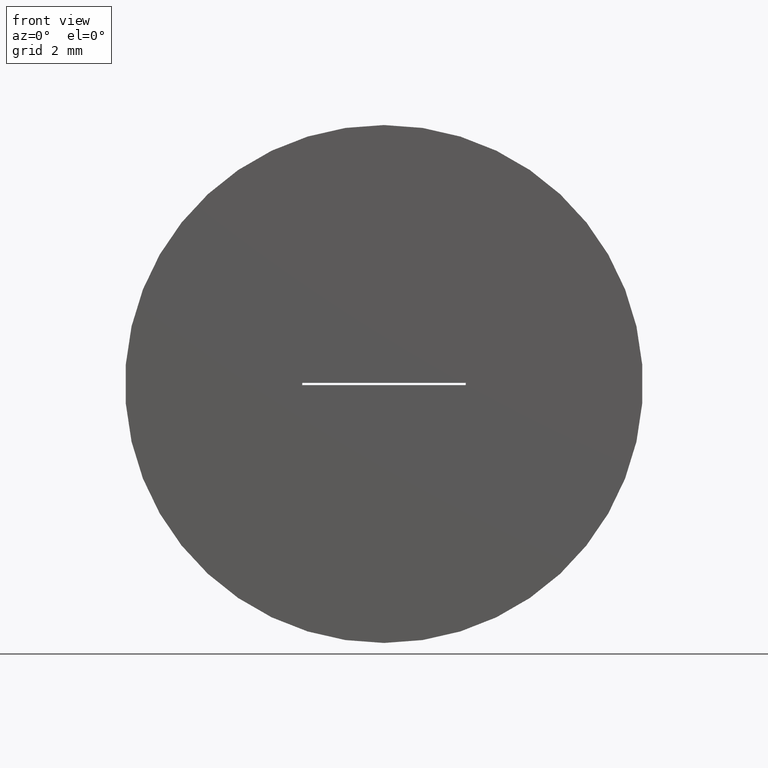
[diagram: clean part render]
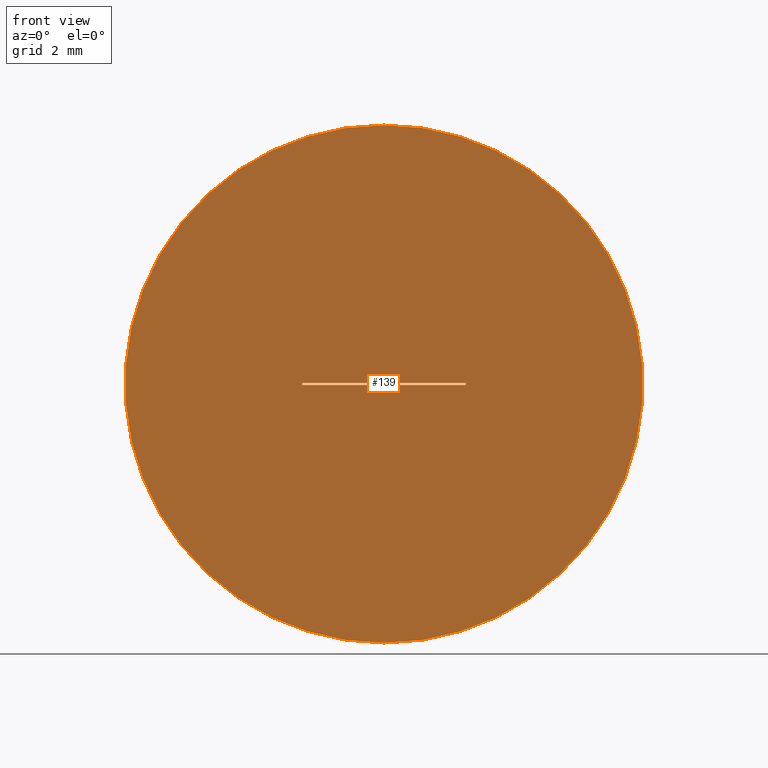
[diagram: same view with one face highlighted and labeled with its STEP entity id]
A machine part, front view. The second image highlights one B-rep face of the part: STEP entity #139.
In plain terms, the highlighted planar face has unit normal (0, 1, 0).
Its self-contained STEP definition (entity closure, byte-faithful):
#6 = EDGE_LOOP ( 'NONE', ( #270, #183, #268, #31 ) ) ;
#7 = DIRECTION ( 'NONE',  ( 0.000000000000000000, 0.000000000000000000, 1.000000000000000000 ) ) ;
#9 = DIRECTION ( 'NONE',  ( 0.000000000000000000, 1.000000000000000000, 0.000000000000000000 ) ) ;
#26 = AXIS2_PLACEMENT_3D ( 'NONE', #134, #62, #226 ) ;
#31 = ORIENTED_EDGE ( 'NONE', *, *, #256, .T. ) ;
#33 = FACE_BOUND ( 'NONE', #6, .T. ) ;
#34 = CARTESIAN_POINT ( 'NONE',  ( 1.499999999999999778, 0.000000000000000000, 0.02000000000000000389 ) ) ;
#56 = DIRECTION ( 'NONE',  ( -1.000000000000000000, -0.000000000000000000, -0.000000000000000000 ) ) ;
#58 = VERTEX_POINT ( 'NONE', #174 ) ;
#60 = VECTOR ( 'NONE', #56, 1000.000000000000000 ) ;
#61 = CARTESIAN_POINT ( 'NONE',  ( -1.500000000000000222, 0.000000000000000000, 0.02000000000000000389 ) ) ;
#62 = DIRECTION ( 'NONE',  ( 0.000000000000000000, 1.000000000000000000, 0.000000000000000000 ) ) ;
#72 = VERTEX_POINT ( 'NONE', #104 ) ;
#74 = LINE ( 'NONE', #193, #136 ) ;
#76 = ORIENTED_EDGE ( 'NONE', *, *, #277, .F. ) ;
#81 = DIRECTION ( 'NONE',  ( 1.000000000000000000, 0.000000000000000000, 0.000000000000000000 ) ) ;
#83 = DIRECTION ( 'NONE',  ( 0.000000000000000000, 1.000000000000000000, 0.000000000000000000 ) ) ;
#84 = EDGE_CURVE ( 'NONE', #92, #58, #173, .T. ) ;
#92 = VERTEX_POINT ( 'NONE', #99 ) ;
#94 = VERTEX_POINT ( 'NONE', #34 ) ;
#99 = CARTESIAN_POINT ( 'NONE',  ( 1.499999999999999778, 0.000000000000000000, -0.01999999999999999695 ) ) ;
#102 = DIRECTION ( 'NONE',  ( 0.000000000000000000, -0.000000000000000000, 1.000000000000000000 ) ) ;
#104 = CARTESIAN_POINT ( 'NONE',  ( 0.000000000000000000, 0.000000000000000000, -4.750000000000000000 ) ) ;
#109 = EDGE_CURVE ( 'NONE', #58, #265, #275, .T. ) ;
#118 = VERTEX_POINT ( 'NONE', #150 ) ;
#127 = EDGE_CURVE ( 'NONE', #94, #92, #74, .T. ) ;
#133 = AXIS2_PLACEMENT_3D ( 'NONE', #220, #9, #102 ) ;
#134 = CARTESIAN_POINT ( 'NONE',  ( 0.000000000000000000, 0.000000000000000000, 0.000000000000000000 ) ) ;
#136 = VECTOR ( 'NONE', #294, 1000.000000000000000 ) ;
#139 = ADVANCED_FACE ( 'NONE', ( #195, #33 ), #175, .F. ) ;
#144 = CIRCLE ( 'NONE', #26, 4.750000000000000000 ) ;
#150 = CARTESIAN_POINT ( 'NONE',  ( 5.817072295949927426E-16, 0.000000000000000000, 4.750000000000000000 ) ) ;
#158 = CARTESIAN_POINT ( 'NONE',  ( 0.000000000000000000, 0.000000000000000000, 0.000000000000000000 ) ) ;
#161 = ORIENTED_EDGE ( 'NONE', *, *, #266, .F. ) ;
#173 = LINE ( 'NONE', #251, #60 ) ;
#174 = CARTESIAN_POINT ( 'NONE',  ( -1.500000000000000222, 0.000000000000000000, -0.01999999999999999695 ) ) ;
#175 = PLANE ( 'NONE',  #133 ) ;
#178 = DIRECTION ( 'NONE',  ( 0.000000000000000000, 0.000000000000000000, 1.000000000000000000 ) ) ;
#181 = CIRCLE ( 'NONE', #259, 4.750000000000000000 ) ;
#183 = ORIENTED_EDGE ( 'NONE', *, *, #84, .T. ) ;
#193 = CARTESIAN_POINT ( 'NONE',  ( 1.499999999999999778, 0.000000000000000000, -0.01999999999999999695 ) ) ;
#195 = FACE_OUTER_BOUND ( 'NONE', #288, .T. ) ;
#196 = CARTESIAN_POINT ( 'NONE',  ( -1.500000000000000222, 0.000000000000000000, -0.01999999999999999695 ) ) ;
#220 = CARTESIAN_POINT ( 'NONE',  ( 0.000000000000000000, 0.000000000000000000, 0.000000000000000000 ) ) ;
#226 = DIRECTION ( 'NONE',  ( 0.000000000000000000, 0.000000000000000000, 1.000000000000000000 ) ) ;
#227 = LINE ( 'NONE', #61, #242 ) ;
#241 = VECTOR ( 'NONE', #7, 1000.000000000000000 ) ;
#242 = VECTOR ( 'NONE', #81, 1000.000000000000000 ) ;
#251 = CARTESIAN_POINT ( 'NONE',  ( -1.500000000000000222, 0.000000000000000000, -0.01999999999999999695 ) ) ;
#256 = EDGE_CURVE ( 'NONE', #265, #94, #227, .T. ) ;
#259 = AXIS2_PLACEMENT_3D ( 'NONE', #158, #83, #178 ) ;
#265 = VERTEX_POINT ( 'NONE', #299 ) ;
#266 = EDGE_CURVE ( 'NONE', #118, #72, #181, .T. ) ;
#268 = ORIENTED_EDGE ( 'NONE', *, *, #109, .T. ) ;
#270 = ORIENTED_EDGE ( 'NONE', *, *, #127, .T. ) ;
#275 = LINE ( 'NONE', #196, #241 ) ;
#277 = EDGE_CURVE ( 'NONE', #72, #118, #144, .T. ) ;
#288 = EDGE_LOOP ( 'NONE', ( #76, #161 ) ) ;
#294 = DIRECTION ( 'NONE',  ( -0.000000000000000000, -0.000000000000000000, -1.000000000000000000 ) ) ;
#299 = CARTESIAN_POINT ( 'NONE',  ( -1.500000000000000222, 0.000000000000000000, 0.02000000000000000389 ) ) ;